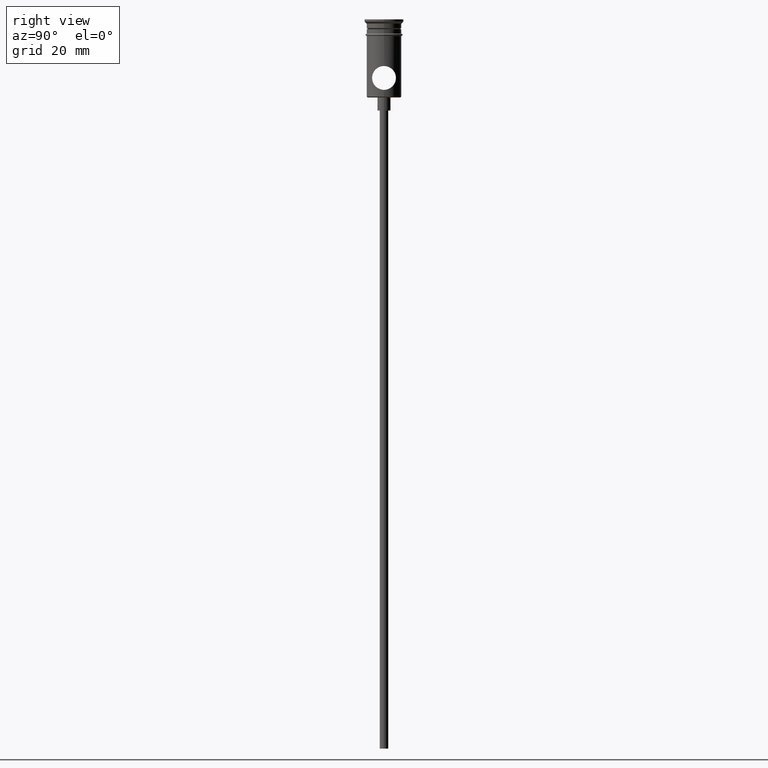
[diagram: clean part render]
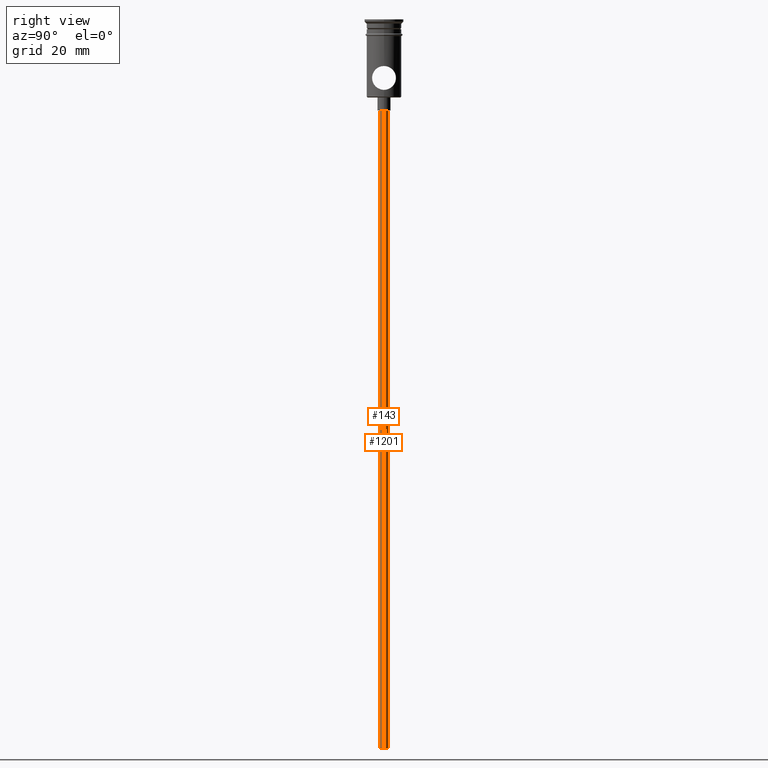
[diagram: same view with one multi-face feature highlighted, each face labeled with its STEP entity id]
A machine part, right view. The highlighted faces form ONE feature: a constant-radius fillet chain: 2 tangent blend faces with common blend radius 1 mm. The faces share edges in the B-rep.
Their STEP definitions:
[1] entity #1201 (Cylinder):
#42 = CARTESIAN_POINT ( 'NONE',  ( 0.000000000000000000, 0.000000000000000000, -167.9999999999999716 ) ) ;
#144 = CARTESIAN_POINT ( 'NONE',  ( -0.9999999999999997780, 1.224646799147352961E-16, -167.9999999999999716 ) ) ;
#166 = DIRECTION ( 'NONE',  ( -0.000000000000000000, -0.000000000000000000, 1.000000000000000000 ) ) ;
#181 = AXIS2_PLACEMENT_3D ( 'NONE', #42, #659, #654 ) ;
#239 = CIRCLE ( 'NONE', #1101, 0.9999999999999997780 ) ;
#244 = VERTEX_POINT ( 'NONE', #316 ) ;
#245 = FACE_OUTER_BOUND ( 'NONE', #269, .T. ) ;
#251 = DIRECTION ( 'NONE',  ( -0.000000000000000000, -0.000000000000000000, 1.000000000000000000 ) ) ;
#269 = EDGE_LOOP ( 'NONE', ( #496, #348, #1023, #782 ) ) ;
#295 = CARTESIAN_POINT ( 'NONE',  ( 0.9999999999999997780, 0.000000000000000000, -20.99999999999999645 ) ) ;
#316 = CARTESIAN_POINT ( 'NONE',  ( -0.9999999999999997780, 1.224646799147352961E-16, -167.9999999999999716 ) ) ;
#346 = CARTESIAN_POINT ( 'NONE',  ( 0.9999999999999997780, 0.000000000000000000, -167.9999999999999716 ) ) ;
#348 = ORIENTED_EDGE ( 'NONE', *, *, #1002, .T. ) ;
#353 = CIRCLE ( 'NONE', #640, 0.9999999999999997780 ) ;
#354 = VERTEX_POINT ( 'NONE', #900 ) ;
#495 = CARTESIAN_POINT ( 'NONE',  ( 0.000000000000000000, 0.000000000000000000, -167.9999999999999716 ) ) ;
#496 = ORIENTED_EDGE ( 'NONE', *, *, #964, .F. ) ;
#503 = DIRECTION ( 'NONE',  ( -1.000000000000000000, 0.000000000000000000, 0.000000000000000000 ) ) ;
#552 = EDGE_CURVE ( 'NONE', #835, #1369, #1034, .T. ) ;
#640 = AXIS2_PLACEMENT_3D ( 'NONE', #495, #1047, #503 ) ;
#654 = DIRECTION ( 'NONE',  ( 1.000000000000000000, 0.000000000000000000, 0.000000000000000000 ) ) ;
#659 = DIRECTION ( 'NONE',  ( -0.000000000000000000, -0.000000000000000000, 1.000000000000000000 ) ) ;
#663 = VECTOR ( 'NONE', #251, 1000.000000000000000 ) ;
#693 = DIRECTION ( 'NONE',  ( -1.000000000000000000, 0.000000000000000000, 0.000000000000000000 ) ) ;
#782 = ORIENTED_EDGE ( 'NONE', *, *, #552, .F. ) ;
#808 = CARTESIAN_POINT ( 'NONE',  ( 0.9999999999999997780, 0.000000000000000000, -167.9999999999999716 ) ) ;
#813 = DIRECTION ( 'NONE',  ( 0.000000000000000000, 0.000000000000000000, -1.000000000000000000 ) ) ;
#835 = VERTEX_POINT ( 'NONE', #346 ) ;
#900 = CARTESIAN_POINT ( 'NONE',  ( -0.9999999999999997780, 1.224646799147352961E-16, -20.99999999999999645 ) ) ;
#927 = CARTESIAN_POINT ( 'NONE',  ( 0.000000000000000000, 0.000000000000000000, -20.99999999999999645 ) ) ;
#964 = EDGE_CURVE ( 'NONE', #244, #835, #353, .T. ) ;
#1002 = EDGE_CURVE ( 'NONE', #244, #354, #1248, .T. ) ;
#1012 = EDGE_CURVE ( 'NONE', #354, #1369, #239, .T. ) ;
#1021 = CYLINDRICAL_SURFACE ( 'NONE', #181, 0.9999999999999997780 ) ;
#1023 = ORIENTED_EDGE ( 'NONE', *, *, #1012, .T. ) ;
#1034 = LINE ( 'NONE', #808, #663 ) ;
#1047 = DIRECTION ( 'NONE',  ( 0.000000000000000000, 0.000000000000000000, -1.000000000000000000 ) ) ;
#1101 = AXIS2_PLACEMENT_3D ( 'NONE', #927, #813, #693 ) ;
#1201 = ADVANCED_FACE ( 'NONE', ( #245 ), #1021, .T. ) ;
#1215 = VECTOR ( 'NONE', #166, 1000.000000000000000 ) ;
#1248 = LINE ( 'NONE', #144, #1215 ) ;
#1369 = VERTEX_POINT ( 'NONE', #295 ) ;
[2] entity #143 (Cylinder):
#3 = DIRECTION ( 'NONE',  ( -1.000000000000000000, 0.000000000000000000, 0.000000000000000000 ) ) ;
#102 = CARTESIAN_POINT ( 'NONE',  ( 0.000000000000000000, 0.000000000000000000, -167.9999999999999716 ) ) ;
#143 = ADVANCED_FACE ( 'NONE', ( #205 ), #642, .T. ) ;
#144 = CARTESIAN_POINT ( 'NONE',  ( -0.9999999999999997780, 1.224646799147352961E-16, -167.9999999999999716 ) ) ;
#166 = DIRECTION ( 'NONE',  ( -0.000000000000000000, -0.000000000000000000, 1.000000000000000000 ) ) ;
#170 = EDGE_CURVE ( 'NONE', #1369, #354, #344, .T. ) ;
#205 = FACE_OUTER_BOUND ( 'NONE', #549, .T. ) ;
#244 = VERTEX_POINT ( 'NONE', #316 ) ;
#251 = DIRECTION ( 'NONE',  ( -0.000000000000000000, -0.000000000000000000, 1.000000000000000000 ) ) ;
#295 = CARTESIAN_POINT ( 'NONE',  ( 0.9999999999999997780, 0.000000000000000000, -20.99999999999999645 ) ) ;
#316 = CARTESIAN_POINT ( 'NONE',  ( -0.9999999999999997780, 1.224646799147352961E-16, -167.9999999999999716 ) ) ;
#344 = CIRCLE ( 'NONE', #1207, 0.9999999999999997780 ) ;
#346 = CARTESIAN_POINT ( 'NONE',  ( 0.9999999999999997780, 0.000000000000000000, -167.9999999999999716 ) ) ;
#354 = VERTEX_POINT ( 'NONE', #900 ) ;
#502 = AXIS2_PLACEMENT_3D ( 'NONE', #102, #512, #529 ) ;
#508 = DIRECTION ( 'NONE',  ( 1.000000000000000000, 0.000000000000000000, 0.000000000000000000 ) ) ;
#512 = DIRECTION ( 'NONE',  ( 0.000000000000000000, 0.000000000000000000, -1.000000000000000000 ) ) ;
#529 = DIRECTION ( 'NONE',  ( -1.000000000000000000, 0.000000000000000000, 0.000000000000000000 ) ) ;
#549 = EDGE_LOOP ( 'NONE', ( #1150, #624, #950, #1129 ) ) ;
#552 = EDGE_CURVE ( 'NONE', #835, #1369, #1034, .T. ) ;
#624 = ORIENTED_EDGE ( 'NONE', *, *, #726, .F. ) ;
#642 = CYLINDRICAL_SURFACE ( 'NONE', #1340, 0.9999999999999997780 ) ;
#663 = VECTOR ( 'NONE', #251, 1000.000000000000000 ) ;
#726 = EDGE_CURVE ( 'NONE', #835, #244, #1117, .T. ) ;
#808 = CARTESIAN_POINT ( 'NONE',  ( 0.9999999999999997780, 0.000000000000000000, -167.9999999999999716 ) ) ;
#835 = VERTEX_POINT ( 'NONE', #346 ) ;
#876 = DIRECTION ( 'NONE',  ( 0.000000000000000000, 0.000000000000000000, -1.000000000000000000 ) ) ;
#900 = CARTESIAN_POINT ( 'NONE',  ( -0.9999999999999997780, 1.224646799147352961E-16, -20.99999999999999645 ) ) ;
#950 = ORIENTED_EDGE ( 'NONE', *, *, #552, .T. ) ;
#978 = CARTESIAN_POINT ( 'NONE',  ( 0.000000000000000000, 0.000000000000000000, -20.99999999999999645 ) ) ;
#1002 = EDGE_CURVE ( 'NONE', #244, #354, #1248, .T. ) ;
#1034 = LINE ( 'NONE', #808, #663 ) ;
#1082 = CARTESIAN_POINT ( 'NONE',  ( 0.000000000000000000, 0.000000000000000000, -167.9999999999999716 ) ) ;
#1117 = CIRCLE ( 'NONE', #502, 0.9999999999999997780 ) ;
#1129 = ORIENTED_EDGE ( 'NONE', *, *, #170, .T. ) ;
#1150 = ORIENTED_EDGE ( 'NONE', *, *, #1002, .F. ) ;
#1207 = AXIS2_PLACEMENT_3D ( 'NONE', #978, #876, #3 ) ;
#1215 = VECTOR ( 'NONE', #166, 1000.000000000000000 ) ;
#1248 = LINE ( 'NONE', #144, #1215 ) ;
#1270 = DIRECTION ( 'NONE',  ( -0.000000000000000000, -0.000000000000000000, 1.000000000000000000 ) ) ;
#1340 = AXIS2_PLACEMENT_3D ( 'NONE', #1082, #1270, #508 ) ;
#1369 = VERTEX_POINT ( 'NONE', #295 ) ;